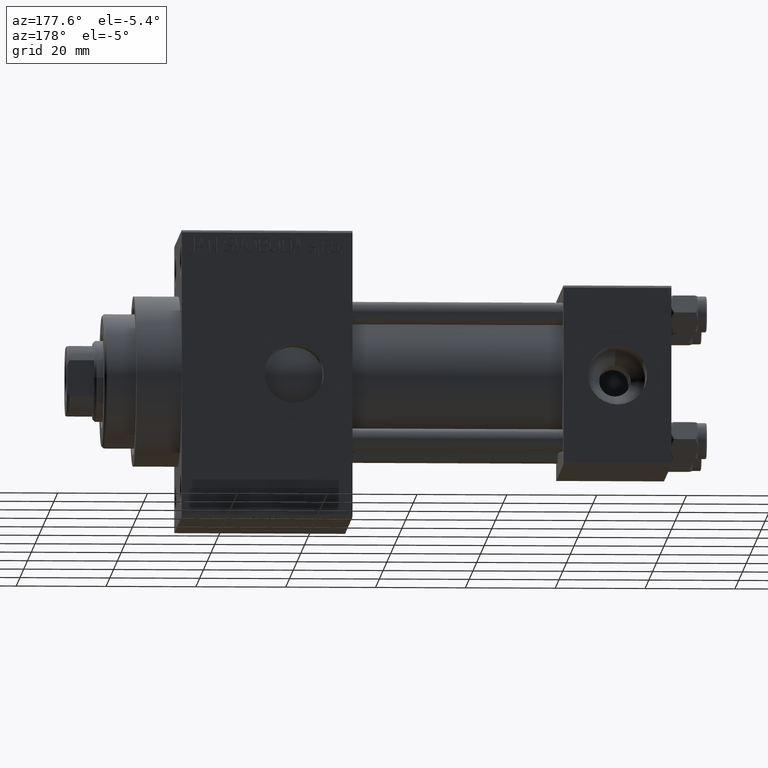
[diagram: clean part render]
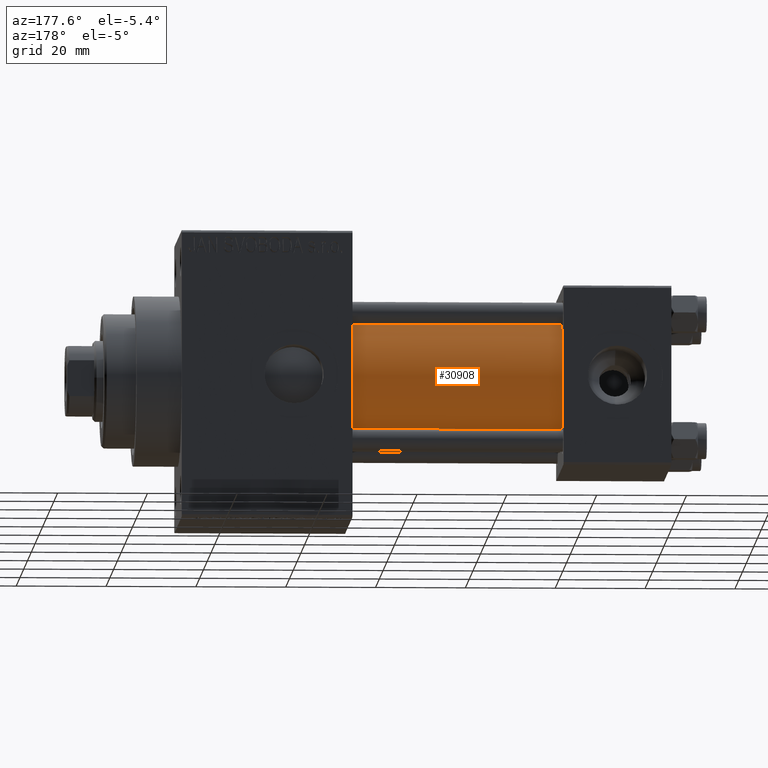
[diagram: same view with one face highlighted and labeled with its STEP entity id]
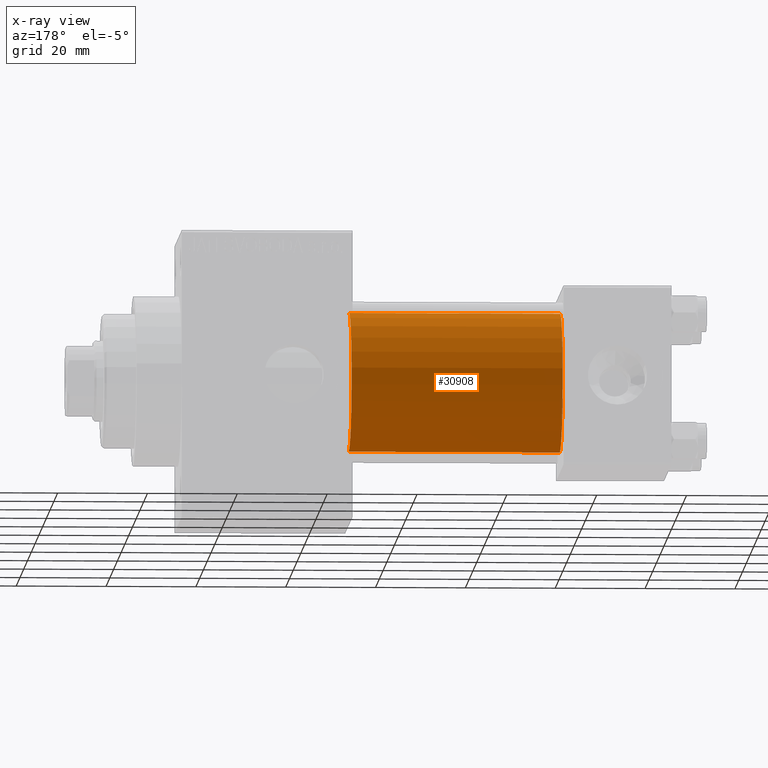
[diagram: x-ray of the same camera — body ghosted, the highlighted face saturated]
A machine part, auxiliary view. The second image highlights one B-rep face of the part: STEP entity #30908.
The next image is the same camera in x-ray: the body ghosted, the highlighted face saturated — about 0% of this face is hidden behind the body in this view.
In plain terms, the highlighted cylindrical surface (partial cylindrical patch) has radius 15.5 mm, axis along (-1, -0, -0).
Its self-contained STEP definition (entity closure, byte-faithful):
#225 = CYLINDRICAL_SURFACE ( 'NONE', #26580, 15.50000000000000000 ) ;
#984 = AXIS2_PLACEMENT_3D ( 'NONE', #31628, #1642, #47484 ) ;
#1642 = DIRECTION ( 'NONE',  ( 1.000000000000000000, 0.000000000000000000, 0.000000000000000000 ) ) ;
#4828 = EDGE_CURVE ( 'NONE', #6118, #43887, #32562, .T. ) ;
#5737 = VERTEX_POINT ( 'NONE', #45206 ) ;
#6118 = VERTEX_POINT ( 'NONE', #24061 ) ;
#6663 = EDGE_CURVE ( 'NONE', #43887, #5737, #12366, .T. ) ;
#7483 = ORIENTED_EDGE ( 'NONE', *, *, #4828, .F. ) ;
#8248 = ORIENTED_EDGE ( 'NONE', *, *, #25278, .T. ) ;
#8645 = FACE_OUTER_BOUND ( 'NONE', #40486, .T. ) ;
#8835 = CARTESIAN_POINT ( 'NONE',  ( 71.00000000000001421, -2.602085213965210642E-15, 15.50000000000000000 ) ) ;
#12366 = LINE ( 'NONE', #38879, #41304 ) ;
#13221 = VERTEX_POINT ( 'NONE', #25820 ) ;
#14959 = DIRECTION ( 'NONE',  ( 1.000000000000000000, 0.000000000000000000, 0.000000000000000000 ) ) ;
#16323 = DIRECTION ( 'NONE',  ( -1.000000000000000000, -0.000000000000000000, -0.000000000000000000 ) ) ;
#16861 = VECTOR ( 'NONE', #35027, 1000.000000000000000 ) ;
#18454 = DIRECTION ( 'NONE',  ( 0.000000000000000000, 0.000000000000000000, -1.000000000000000000 ) ) ;
#19916 = LINE ( 'NONE', #43179, #16861 ) ;
#19965 = EDGE_CURVE ( 'NONE', #13221, #5737, #40566, .T. ) ;
#23815 = CARTESIAN_POINT ( 'NONE',  ( 71.00000000000001421, -2.602085213965210642E-15, 0.000000000000000000 ) ) ;
#24061 = CARTESIAN_POINT ( 'NONE',  ( 71.00000000000001421, -7.038826752868131828E-16, -15.50000000000000000 ) ) ;
#25278 = EDGE_CURVE ( 'NONE', #6118, #13221, #19916, .T. ) ;
#25820 = CARTESIAN_POINT ( 'NONE',  ( 24.00000000000000000, -7.038826752868131828E-16, -15.50000000000000000 ) ) ;
#26580 = AXIS2_PLACEMENT_3D ( 'NONE', #35168, #34189, #30959 ) ;
#27285 = ORIENTED_EDGE ( 'NONE', *, *, #19965, .T. ) ;
#30908 = ADVANCED_FACE ( 'NONE', ( #8645 ), #225, .T. ) ;
#30959 = DIRECTION ( 'NONE',  ( 0.000000000000000000, 0.000000000000000000, 1.000000000000000000 ) ) ;
#31628 = CARTESIAN_POINT ( 'NONE',  ( 24.00000000000000000, -2.602085213965210642E-15, 0.000000000000000000 ) ) ;
#32562 = CIRCLE ( 'NONE', #47605, 15.50000000000000000 ) ;
#34189 = DIRECTION ( 'NONE',  ( -1.000000000000000000, -0.000000000000000000, -0.000000000000000000 ) ) ;
#35027 = DIRECTION ( 'NONE',  ( -1.000000000000000000, -0.000000000000000000, -0.000000000000000000 ) ) ;
#35168 = CARTESIAN_POINT ( 'NONE',  ( 71.00000000000001421, -2.602085213965210642E-15, 0.000000000000000000 ) ) ;
#38879 = CARTESIAN_POINT ( 'NONE',  ( 71.00000000000001421, -2.602085213965210642E-15, 15.50000000000000000 ) ) ;
#40486 = EDGE_LOOP ( 'NONE', ( #7483, #8248, #27285, #41767 ) ) ;
#40566 = CIRCLE ( 'NONE', #984, 15.50000000000000000 ) ;
#41304 = VECTOR ( 'NONE', #16323, 1000.000000000000000 ) ;
#41767 = ORIENTED_EDGE ( 'NONE', *, *, #6663, .F. ) ;
#43179 = CARTESIAN_POINT ( 'NONE',  ( 71.00000000000001421, -7.038826752868131828E-16, -15.50000000000000000 ) ) ;
#43887 = VERTEX_POINT ( 'NONE', #8835 ) ;
#45206 = CARTESIAN_POINT ( 'NONE',  ( 24.00000000000000000, -2.602085213965210642E-15, 15.50000000000000000 ) ) ;
#47484 = DIRECTION ( 'NONE',  ( 0.000000000000000000, 0.000000000000000000, 1.000000000000000000 ) ) ;
#47605 = AXIS2_PLACEMENT_3D ( 'NONE', #23815, #14959, #18454 ) ;